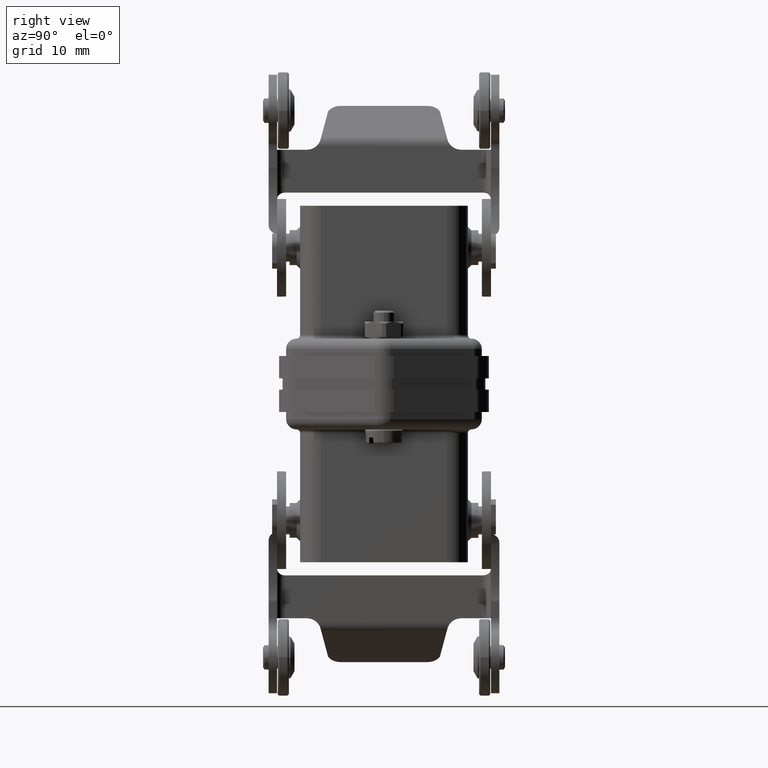
[diagram: clean part render]
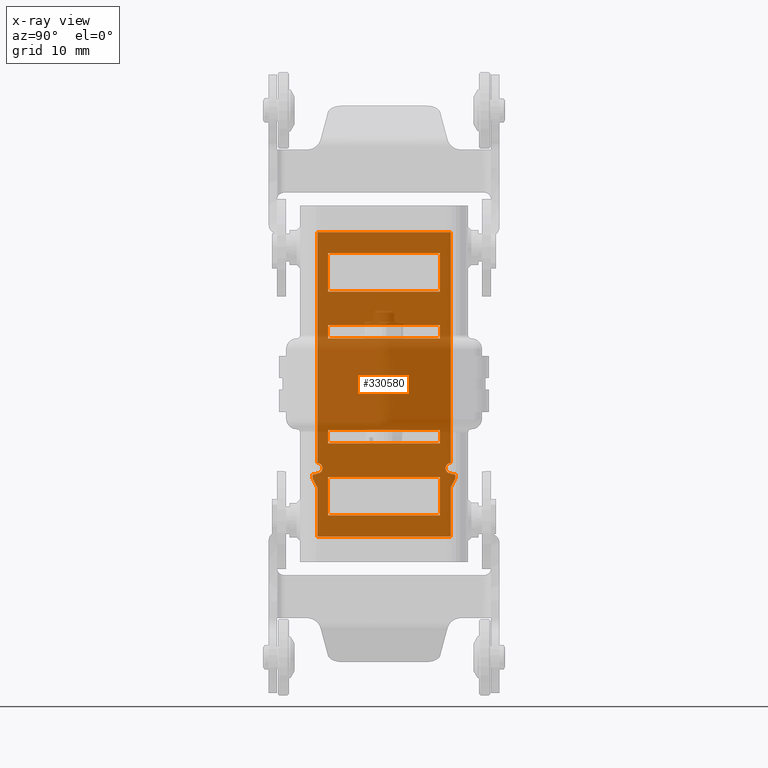
[diagram: x-ray — body ghosted, one internal face saturated and labeled with its STEP entity id]
A machine part, right view, then the same camera in x-ray: the body is ghosted and one INTERNAL B-rep face — a face not visible from any outside direction — is saturated and labeled: STEP entity #330580.
In plain terms, the highlighted planar face has unit normal (1, 0, 0).
Its self-contained STEP definition (entity closure, byte-faithful):
#234720=CARTESIAN_POINT('',(-3.05,0.,-32.4));
#234730=DIRECTION('',(-0.,1.,0.));
#234740=VECTOR('',#234730,1.);
#234750=LINE('',#234720,#234740);
#234760=CARTESIAN_POINT('',(-3.05,-9.94999999999999,-32.4));
#234770=VERTEX_POINT('',#234760);
#234780=CARTESIAN_POINT('',(-3.05,-9.65,-32.4));
#234790=VERTEX_POINT('',#234780);
#234800=EDGE_CURVE('',#234770,#234790,#234750,.T.);
#235380=CARTESIAN_POINT('',(-3.05,-9.65,-32.3));
#235390=VERTEX_POINT('',#235380);
#235420=CARTESIAN_POINT('',(-3.05,-9.65,0.));
#235430=DIRECTION('',(0.,0.,1.));
#235440=VECTOR('',#235430,1.);
#235450=LINE('',#235420,#235440);
#235460=EDGE_CURVE('',#234790,#235390,#235450,.T.);
#262330=CARTESIAN_POINT('',(-3.05,9.94999999999998,-32.4));
#262340=VERTEX_POINT('',#262330);
#262370=CARTESIAN_POINT('',(-3.05,0.,-32.4));
#262380=DIRECTION('',(-0.,1.,0.));
#262390=VECTOR('',#262380,1.);
#262400=LINE('',#262370,#262390);
#262410=CARTESIAN_POINT('',(-3.05,9.65,-32.4));
#262420=VERTEX_POINT('',#262410);
#262430=EDGE_CURVE('',#262420,#262340,#262400,.T.);
#262680=CARTESIAN_POINT('',(-3.05,9.65,0.));
#262690=DIRECTION('',(0.,-0.,-1.));
#262700=VECTOR('',#262690,1.);
#262710=LINE('',#262680,#262700);
#262720=CARTESIAN_POINT('',(-3.05,9.65,-32.3));
#262730=VERTEX_POINT('',#262720);
#262740=EDGE_CURVE('',#262730,#262420,#262710,.T.);
#299050=CARTESIAN_POINT('',(-3.05,-10.2,-72.333382));
#299060=DIRECTION('',(0.,0.,-1.));
#299070=VECTOR('',#299060,1.);
#299080=LINE('',#299050,#299070);
#299090=CARTESIAN_POINT('',(-3.05,-10.2,-32.5));
#299100=VERTEX_POINT('',#299090);
#299110=CARTESIAN_POINT('',(-3.05,-10.2,-33.0243031714217));
#299120=VERTEX_POINT('',#299110);
#299130=EDGE_CURVE('',#299100,#299120,#299080,.T.);
#322300=CARTESIAN_POINT('',(-3.05,-9.55000000000001,-41.3));
#322310=VERTEX_POINT('',#322300);
#322340=CARTESIAN_POINT('',(-3.05,0.,-41.3));
#322350=DIRECTION('',(0.,-1.,0.));
#322360=VECTOR('',#322350,1.);
#322370=LINE('',#322340,#322360);
#322380=CARTESIAN_POINT('',(-3.05,9.55,-41.3));
#322390=VERTEX_POINT('',#322380);
#322400=EDGE_CURVE('',#322390,#322310,#322370,.T.);
#323000=CARTESIAN_POINT('',(-3.05,9.55,2.20000000000001));
#323010=VERTEX_POINT('',#323000);
#323040=CARTESIAN_POINT('',(-3.05,0.,2.20000000000001));
#323050=DIRECTION('',(-0.,1.,0.));
#323060=VECTOR('',#323050,1.);
#323070=LINE('',#323040,#323060);
#323080=CARTESIAN_POINT('',(-3.05,-9.55000000000001,2.20000000000001));
#323090=VERTEX_POINT('',#323080);
#323100=EDGE_CURVE('',#323090,#323010,#323070,.T.);
#326400=CARTESIAN_POINT('',(-3.05,41.68389,-11.7464439999999));
#326410=DIRECTION('',(0.,0.928476690885259,0.371390676354106));
#326420=VECTOR('',#326410,1.);
#326430=LINE('',#326400,#326420);
#326440=EDGE_CURVE('',#299100,#234770,#326430,.T.);
#326670=CARTESIAN_POINT('',(-3.05,-9.55000000000001,-34.3));
#326680=VERTEX_POINT('',#326670);
#326730=CARTESIAN_POINT('',(-3.05,-9.55000000000001,-34.3));
#326740=DIRECTION('',(0.,-0.453990499739547,0.891006524188368));
#326750=VECTOR('',#326740,1.);
#326760=LINE('',#326730,#326750);
#326770=EDGE_CURVE('',#326680,#299120,#326760,.T.);
#327760=CARTESIAN_POINT('',(-3.05,9.55,-34.3));
#327770=VERTEX_POINT('',#327760);
#327830=CARTESIAN_POINT('',(-3.05,9.55,2.2));
#327840=DIRECTION('',(0.,0.,-1.));
#327850=VECTOR('',#327840,1.);
#327860=LINE('',#327830,#327850);
#327870=EDGE_CURVE('',#327770,#322390,#327860,.T.);
#328080=CARTESIAN_POINT('',(-3.05,10.2,-33.0243031714217));
#328090=VERTEX_POINT('',#328080);
#328140=CARTESIAN_POINT('',(-3.05,9.55,-34.3));
#328150=DIRECTION('',(0.,0.453990499739547,0.891006524188368));
#328160=VECTOR('',#328150,1.);
#328170=LINE('',#328140,#328160);
#328180=EDGE_CURVE('',#327770,#328090,#328170,.T.);
#328370=CARTESIAN_POINT('',(-3.05,10.2,-72.333382));
#328380=DIRECTION('',(0.,0.,1.));
#328390=VECTOR('',#328380,1.);
#328400=LINE('',#328370,#328390);
#328410=CARTESIAN_POINT('',(-3.05,10.2,-32.5));
#328420=VERTEX_POINT('',#328410);
#328430=EDGE_CURVE('',#328090,#328420,#328400,.T.);
#328610=CARTESIAN_POINT('',(-3.05,41.68389,-72.333382));
#328620=DIRECTION('',(1.,0.,-0.));
#328630=DIRECTION('',(0.,0.,1.));
#328640=AXIS2_PLACEMENT_3D('',#328610,#328620,#328630);
#328650=PLANE('',#328640);
#328660=CARTESIAN_POINT('',(-3.05,12.2400024,-28.));
#328670=DIRECTION('',(0.,-1.,0.));
#328680=VECTOR('',#328670,1.);
#328690=LINE('',#328660,#328680);
#328700=CARTESIAN_POINT('',(-3.05,7.99999999999999,-28.));
#328710=VERTEX_POINT('',#328700);
#328720=CARTESIAN_POINT('',(-3.05,-8.00000000000001,-28.));
#328730=VERTEX_POINT('',#328720);
#328740=EDGE_CURVE('',#328710,#328730,#328690,.T.);
#328750=ORIENTED_EDGE('',*,*,#328740,.T.);
#328760=CARTESIAN_POINT('',(-3.05,7.99999999999999,-72.333382));
#328770=DIRECTION('',(0.,0.,-1.));
#328780=VECTOR('',#328770,1.);
#328790=LINE('',#328760,#328780);
#328800=CARTESIAN_POINT('',(-3.05,7.99999999999999,-26.1));
#328810=VERTEX_POINT('',#328800);
#328820=EDGE_CURVE('',#328810,#328710,#328790,.T.);
#328830=ORIENTED_EDGE('',*,*,#328820,.T.);
#328840=CARTESIAN_POINT('',(-3.05,12.2400024,-26.1));
#328850=DIRECTION('',(0.,-1.,0.));
#328860=VECTOR('',#328850,1.);
#328870=LINE('',#328840,#328860);
#328880=CARTESIAN_POINT('',(-3.05,-8.00000000000001,-26.1));
#328890=VERTEX_POINT('',#328880);
#328900=EDGE_CURVE('',#328810,#328890,#328870,.T.);
#328910=ORIENTED_EDGE('',*,*,#328900,.F.);
#328920=CARTESIAN_POINT('',(-3.05,-8.00000000000001,-72.333382));
#328930=DIRECTION('',(0.,0.,1.));
#328940=VECTOR('',#328930,1.);
#328950=LINE('',#328920,#328940);
#328960=EDGE_CURVE('',#328730,#328890,#328950,.T.);
#328970=ORIENTED_EDGE('',*,*,#328960,.T.);
#328980=EDGE_LOOP('',(#328970,#328910,#328830,#328750));
#328990=FACE_BOUND('',#328980,.T.);
#329000=CARTESIAN_POINT('',(-3.05,12.2400024,-11.1));
#329010=DIRECTION('',(0.,-1.,0.));
#329020=VECTOR('',#329010,1.);
#329030=LINE('',#329000,#329020);
#329040=CARTESIAN_POINT('',(-3.05,7.99999999999999,-11.1));
#329050=VERTEX_POINT('',#329040);
#329060=CARTESIAN_POINT('',(-3.05,-8.00000000000001,-11.1));
#329070=VERTEX_POINT('',#329060);
#329080=EDGE_CURVE('',#329050,#329070,#329030,.T.);
#329090=ORIENTED_EDGE('',*,*,#329080,.F.);
#329100=CARTESIAN_POINT('',(-3.05,-8.00000000000001,-72.333382));
#329110=DIRECTION('',(0.,0.,-1.));
#329120=VECTOR('',#329110,1.);
#329130=LINE('',#329100,#329120);
#329140=CARTESIAN_POINT('',(-3.05,-8.00000000000001,-13.));
#329150=VERTEX_POINT('',#329140);
#329160=EDGE_CURVE('',#329070,#329150,#329130,.T.);
#329170=ORIENTED_EDGE('',*,*,#329160,.F.);
#329180=CARTESIAN_POINT('',(-3.05,12.2400024,-13.));
#329190=DIRECTION('',(0.,-1.,0.));
#329200=VECTOR('',#329190,1.);
#329210=LINE('',#329180,#329200);
#329220=CARTESIAN_POINT('',(-3.05,7.99999999999999,-13.));
#329230=VERTEX_POINT('',#329220);
#329240=EDGE_CURVE('',#329230,#329150,#329210,.T.);
#329250=ORIENTED_EDGE('',*,*,#329240,.T.);
#329260=CARTESIAN_POINT('',(-3.05,7.99999999999999,-72.333382));
#329270=DIRECTION('',(0.,0.,1.));
#329280=VECTOR('',#329270,1.);
#329290=LINE('',#329260,#329280);
#329300=EDGE_CURVE('',#329230,#329050,#329290,.T.);
#329310=ORIENTED_EDGE('',*,*,#329300,.F.);
#329320=EDGE_LOOP('',(#329310,#329250,#329170,#329090));
#329330=FACE_BOUND('',#329320,.T.);
#329340=CARTESIAN_POINT('',(-3.05,12.4516,-0.799999999999997));
#329350=DIRECTION('',(0.,-1.,0.));
#329360=VECTOR('',#329350,1.);
#329370=LINE('',#329340,#329360);
#329380=CARTESIAN_POINT('',(-3.05,7.99999999999999,-0.799999999999997));
#329390=VERTEX_POINT('',#329380);
#329400=CARTESIAN_POINT('',(-3.05,-8.00000000000001,-0.799999999999997))
;
#329410=VERTEX_POINT('',#329400);
#329420=EDGE_CURVE('',#329390,#329410,#329370,.T.);
#329430=ORIENTED_EDGE('',*,*,#329420,.F.);
#329440=CARTESIAN_POINT('',(-3.05,-8.00000000000001,-6.3));
#329450=VERTEX_POINT('',#329440);
#329460=EDGE_CURVE('',#329410,#329450,#329130,.T.);
#329470=ORIENTED_EDGE('',*,*,#329460,.F.);
#329480=CARTESIAN_POINT('',(-3.05,12.2400024,-6.3));
#329490=DIRECTION('',(0.,-1.,0.));
#329500=VECTOR('',#329490,1.);
#329510=LINE('',#329480,#329500);
#329520=CARTESIAN_POINT('',(-3.05,7.99999999999999,-6.3));
#329530=VERTEX_POINT('',#329520);
#329540=EDGE_CURVE('',#329530,#329450,#329510,.T.);
#329550=ORIENTED_EDGE('',*,*,#329540,.T.);
#329560=EDGE_CURVE('',#329530,#329390,#329290,.T.);
#329570=ORIENTED_EDGE('',*,*,#329560,.F.);
#329580=EDGE_LOOP('',(#329570,#329550,#329470,#329430));
#329590=FACE_BOUND('',#329580,.T.);
#329600=CARTESIAN_POINT('',(-3.05,12.2400024,-32.8));
#329610=DIRECTION('',(0.,-1.,0.));
#329620=VECTOR('',#329610,1.);
#329630=LINE('',#329600,#329620);
#329640=CARTESIAN_POINT('',(-3.05,7.99999999999999,-32.8));
#329650=VERTEX_POINT('',#329640);
#329660=CARTESIAN_POINT('',(-3.05,-8.00000000000001,-32.8));
#329670=VERTEX_POINT('',#329660);
#329680=EDGE_CURVE('',#329650,#329670,#329630,.T.);
#329690=ORIENTED_EDGE('',*,*,#329680,.F.);
#329700=CARTESIAN_POINT('',(-3.05,-8.00000000000001,-38.3));
#329710=VERTEX_POINT('',#329700);
#329720=EDGE_CURVE('',#329710,#329670,#328950,.T.);
#329730=ORIENTED_EDGE('',*,*,#329720,.T.);
#329740=CARTESIAN_POINT('',(-3.05,12.4516,-38.3));
#329750=DIRECTION('',(0.,-1.,0.));
#329760=VECTOR('',#329750,1.);
#329770=LINE('',#329740,#329760);
#329780=CARTESIAN_POINT('',(-3.05,7.99999999999999,-38.3));
#329790=VERTEX_POINT('',#329780);
#329800=EDGE_CURVE('',#329790,#329710,#329770,.T.);
#329810=ORIENTED_EDGE('',*,*,#329800,.T.);
#329820=EDGE_CURVE('',#329650,#329790,#328790,.T.);
#329830=ORIENTED_EDGE('',*,*,#329820,.T.);
#329840=EDGE_LOOP('',(#329830,#329810,#329730,#329690));
#329850=FACE_BOUND('',#329840,.T.);
#329860=ORIENTED_EDGE('',*,*,#323100,.F.);
#329870=CARTESIAN_POINT('',(-3.05,9.55,-72.333382));
#329880=DIRECTION('',(0.,0.,1.));
#329890=VECTOR('',#329880,1.);
#329900=LINE('',#329870,#329890);
#329910=CARTESIAN_POINT('',(-3.05,9.55,-30.8));
#329920=VERTEX_POINT('',#329910);
#329930=EDGE_CURVE('',#329920,#323010,#329900,.T.);
#329940=ORIENTED_EDGE('',*,*,#329930,.T.);
#329950=CARTESIAN_POINT('',(-3.05,9.55,-31.55));
#329960=DIRECTION('',(1.,0.,0.));
#329970=DIRECTION('',(0.,0.,1.));
#329980=AXIS2_PLACEMENT_3D('',#329950,#329960,#329970);
#329990=CIRCLE('',#329980,0.75);
#330000=CARTESIAN_POINT('',(-3.05,9.55,-32.3));
#330010=VERTEX_POINT('',#330000);
#330020=EDGE_CURVE('',#329920,#330010,#329990,.T.);
#330030=ORIENTED_EDGE('',*,*,#330020,.F.);
#330040=CARTESIAN_POINT('',(-3.05,41.68389,-32.3));
#330050=DIRECTION('',(0.,-1.,0.));
#330060=VECTOR('',#330050,1.);
#330070=LINE('',#330040,#330060);
#330080=EDGE_CURVE('',#262730,#330010,#330070,.T.);
#330090=ORIENTED_EDGE('',*,*,#330080,.T.);
#330100=ORIENTED_EDGE('',*,*,#262740,.F.);
#330110=ORIENTED_EDGE('',*,*,#262430,.F.);
#330120=CARTESIAN_POINT('',(-3.05,41.68389,-45.0935560000001));
#330130=DIRECTION('',(0.,0.928476690885259,-0.371390676354106));
#330140=VECTOR('',#330130,1.);
#330150=LINE('',#330120,#330140);
#330160=EDGE_CURVE('',#262340,#328420,#330150,.T.);
#330170=ORIENTED_EDGE('',*,*,#330160,.F.);
#330180=ORIENTED_EDGE('',*,*,#328430,.T.);
#330190=ORIENTED_EDGE('',*,*,#328180,.T.);
#330200=ORIENTED_EDGE('',*,*,#327870,.F.);
#330210=ORIENTED_EDGE('',*,*,#322400,.F.);
#330220=CARTESIAN_POINT('',(-3.05,-9.55000000000001,-41.3));
#330230=DIRECTION('',(0.,0.,1.));
#330240=VECTOR('',#330230,1.);
#330250=LINE('',#330220,#330240);
#330260=EDGE_CURVE('',#322310,#326680,#330250,.T.);
#330270=ORIENTED_EDGE('',*,*,#330260,.F.);
#330280=ORIENTED_EDGE('',*,*,#326770,.F.);
#330290=ORIENTED_EDGE('',*,*,#299130,.T.);
#330300=ORIENTED_EDGE('',*,*,#326440,.F.);
#330310=ORIENTED_EDGE('',*,*,#234800,.F.);
#330320=ORIENTED_EDGE('',*,*,#235460,.F.);
#330330=CARTESIAN_POINT('',(-3.05,41.68389,-32.3));
#330340=DIRECTION('',(0.,-1.,0.));
#330350=VECTOR('',#330340,1.);
#330360=LINE('',#330330,#330350);
#330370=CARTESIAN_POINT('',(-3.05,-9.55000000000001,-32.3));
#330380=VERTEX_POINT('',#330370);
#330390=EDGE_CURVE('',#330380,#235390,#330360,.T.);
#330400=ORIENTED_EDGE('',*,*,#330390,.T.);
#330410=CARTESIAN_POINT('',(-3.05,-9.55000000000001,-31.55));
#330420=DIRECTION('',(-1.,0.,0.));
#330430=DIRECTION('',(0.,0.,1.));
#330440=AXIS2_PLACEMENT_3D('',#330410,#330420,#330430);
#330450=CIRCLE('',#330440,0.75);
#330460=CARTESIAN_POINT('',(-3.05,-9.55000000000001,-30.8));
#330470=VERTEX_POINT('',#330460);
#330480=EDGE_CURVE('',#330470,#330380,#330450,.T.);
#330490=ORIENTED_EDGE('',*,*,#330480,.T.);
#330500=CARTESIAN_POINT('',(-3.05,-9.55000000000001,-72.333382));
#330510=DIRECTION('',(0.,0.,-1.));
#330520=VECTOR('',#330510,1.);
#330530=LINE('',#330500,#330520);
#330540=EDGE_CURVE('',#323090,#330470,#330530,.T.);
#330550=ORIENTED_EDGE('',*,*,#330540,.T.);
#330560=EDGE_LOOP('',(#330550,#330490,#330400,#330320,#330310,#330300,
#330290,#330280,#330270,#330210,#330200,#330190,#330180,#330170,#330110,
#330100,#330090,#330030,#329940,#329860));
#330570=FACE_OUTER_BOUND('',#330560,.T.);
#330580=ADVANCED_FACE('',(#328990,#329330,#329590,#329850,#330570),
#328650,.T.);